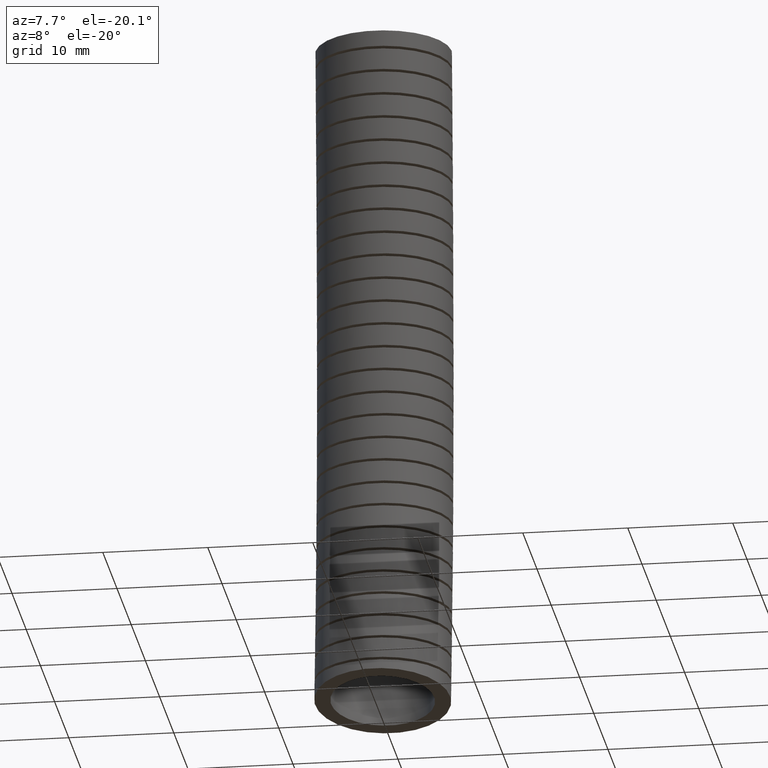
[diagram: clean part render]
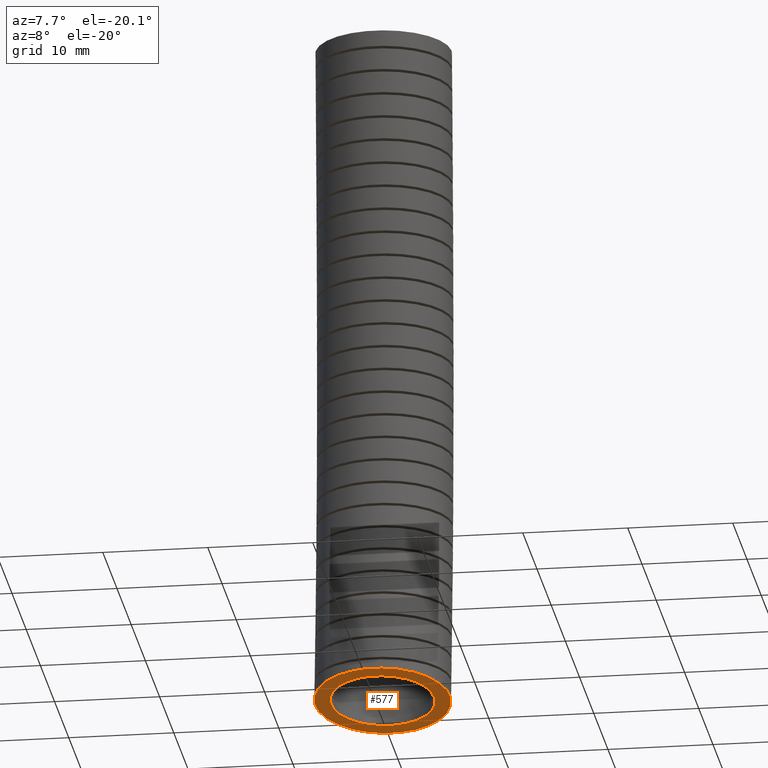
[diagram: same view with one face highlighted and labeled with its STEP entity id]
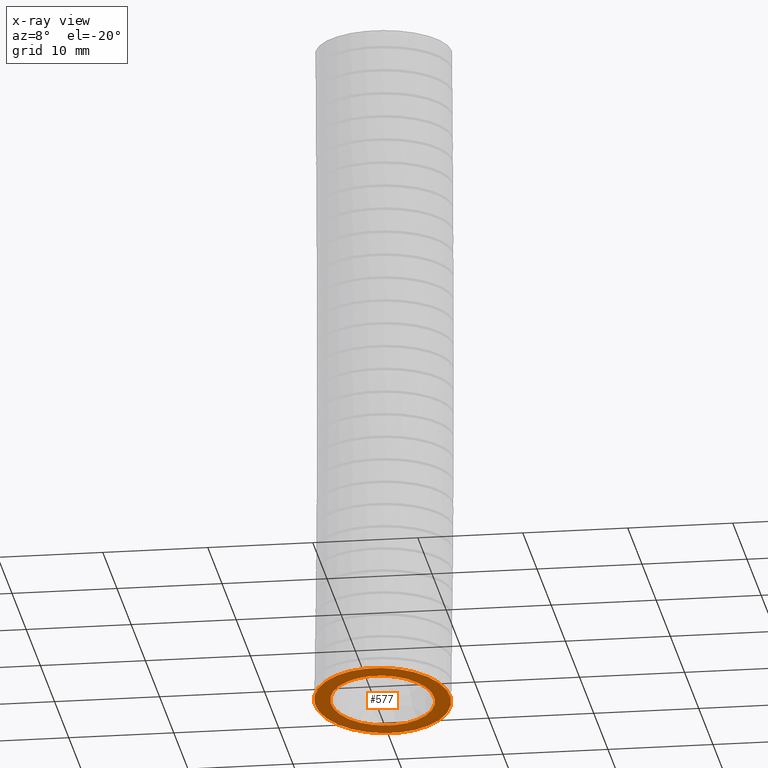
[diagram: x-ray of the same camera — body ghosted, the highlighted face saturated]
A machine part, auxiliary view. The second image highlights one B-rep face of the part: STEP entity #577.
The next image is the same camera in x-ray: the body ghosted, the highlighted face saturated — about 0% of this face is hidden behind the body in this view.
In plain terms, the highlighted planar face has unit normal (0, 0.1456, 0.9894).
Its self-contained STEP definition (entity closure, byte-faithful):
#250 = VERTEX_POINT ( 'NONE', #9593 ) ;
#264 = EDGE_CURVE ( 'NONE', #321, #250, #9700, .T. ) ;
#321 = VERTEX_POINT ( 'NONE', #10684 ) ;
#328 = EDGE_CURVE ( 'NONE', #250, #321, #10622, .T. ) ;
#495 = ORIENTED_EDGE ( 'NONE', *, *, #328, .F. ) ;
#515 = EDGE_CURVE ( 'NONE', #1581, #1584, #12131, .T. ) ;
#516 = EDGE_LOOP ( 'NONE', ( #517, #495 ) ) ;
#517 = ORIENTED_EDGE ( 'NONE', *, *, #264, .F. ) ;
#577 = ADVANCED_FACE ( 'NONE', ( #12683, #12682 ), #12744, .F. ) ;
#578 = EDGE_LOOP ( 'NONE', ( #599, #600 ) ) ;
#599 = ORIENTED_EDGE ( 'NONE', *, *, #1583, .T. ) ;
#600 = ORIENTED_EDGE ( 'NONE', *, *, #515, .T. ) ;
#1581 = VERTEX_POINT ( 'NONE', #7298 ) ;
#1583 = EDGE_CURVE ( 'NONE', #1584, #1581, #7290, .T. ) ;
#1584 = VERTEX_POINT ( 'NONE', #7286 ) ;
#7286 = CARTESIAN_POINT ( 'NONE',  ( 0.1949999999999999800, -0.03000000000000002300, -2.570000000000000300 ) ) ;
#7287 = DIRECTION ( 'NONE',  ( 1.000000000000000000, 0.0000000000000000000, 0.0000000000000000000 ) ) ;
#7288 = DIRECTION ( 'NONE',  ( 0.0000000000000000000, 0.1455525941150913900, 0.9893505154121908800 ) ) ;
#7289 = AXIS2_PLACEMENT_3D ( 'NONE', #7297, #7288, #7287 ) ;
#7290 = CIRCLE ( 'NONE', #7289, 0.1949999999999999800 ) ;
#7297 = CARTESIAN_POINT ( 'NONE',  ( 0.0000000000000000000, -0.03000000000000002300, -2.570000000000000300 ) ) ;
#7298 = CARTESIAN_POINT ( 'NONE',  ( -0.1950000000000000100, -0.03000000000000008200, -2.570000000000000300 ) ) ;
#9593 = CARTESIAN_POINT ( 'NONE',  ( -0.2550000000000000600, -0.03000000000000007900, -2.570000000000000300 ) ) ;
#9698 = DIRECTION ( 'NONE',  ( 1.000000000000000000, 0.0000000000000000000, 0.0000000000000000000 ) ) ;
#9699 = AXIS2_PLACEMENT_3D ( 'NONE', #9720, #9742, #9698 ) ;
#9700 = CIRCLE ( 'NONE', #9699, 0.2550000000000000000 ) ;
#9720 = CARTESIAN_POINT ( 'NONE',  ( 0.0000000000000000000, -0.03000000000000002300, -2.570000000000000300 ) ) ;
#9742 = DIRECTION ( 'NONE',  ( 0.0000000000000000000, 0.1455525941150913900, 0.9893505154121908800 ) ) ;
#10622 = CIRCLE ( 'NONE', #10631, 0.2550000000000000000 ) ;
#10631 = AXIS2_PLACEMENT_3D ( 'NONE', #10701, #10700, #10699 ) ;
#10684 = CARTESIAN_POINT ( 'NONE',  ( 0.2550000000000000000, -0.03000000000000002300, -2.570000000000000300 ) ) ;
#10699 = DIRECTION ( 'NONE',  ( 1.000000000000000000, 0.0000000000000000000, 0.0000000000000000000 ) ) ;
#10700 = DIRECTION ( 'NONE',  ( 0.0000000000000000000, 0.1455525941150913900, 0.9893505154121908800 ) ) ;
#10701 = CARTESIAN_POINT ( 'NONE',  ( 0.0000000000000000000, -0.03000000000000002300, -2.570000000000000300 ) ) ;
#12128 = DIRECTION ( 'NONE',  ( 1.000000000000000000, 0.0000000000000000000, 0.0000000000000000000 ) ) ;
#12129 = DIRECTION ( 'NONE',  ( 0.0000000000000000000, 0.1455525941150913900, 0.9893505154121908800 ) ) ;
#12130 = AXIS2_PLACEMENT_3D ( 'NONE', #12136, #12129, #12128 ) ;
#12131 = CIRCLE ( 'NONE', #12130, 0.1949999999999999800 ) ;
#12136 = CARTESIAN_POINT ( 'NONE',  ( 0.0000000000000000000, -0.03000000000000002300, -2.570000000000000300 ) ) ;
#12682 = FACE_OUTER_BOUND ( 'NONE', #516, .T. ) ;
#12683 = FACE_BOUND ( 'NONE', #578, .T. ) ;
#12740 = DIRECTION ( 'NONE',  ( 1.000000000000000000, 0.0000000000000000000, 0.0000000000000000000 ) ) ;
#12741 = DIRECTION ( 'NONE',  ( 0.0000000000000000000, 0.1455525941150913600, 0.9893505154121907700 ) ) ;
#12742 = CARTESIAN_POINT ( 'NONE',  ( 0.0000000000000000000, -0.03000000000000002300, -2.570000000000000300 ) ) ;
#12743 = AXIS2_PLACEMENT_3D ( 'NONE', #12742, #12741, #12740 ) ;
#12744 = PLANE ( 'NONE',  #12743 ) ;